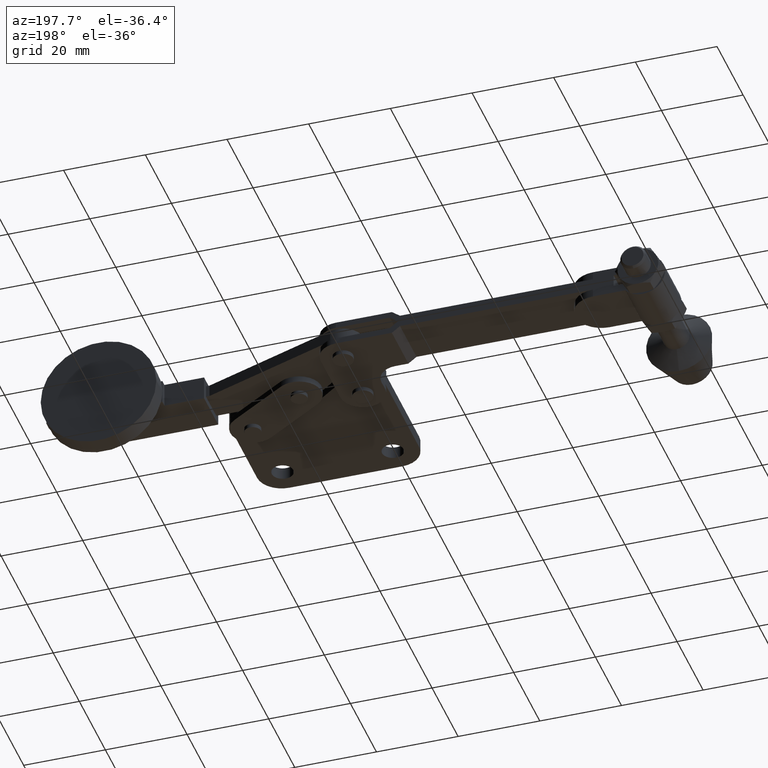
[diagram: clean part render]
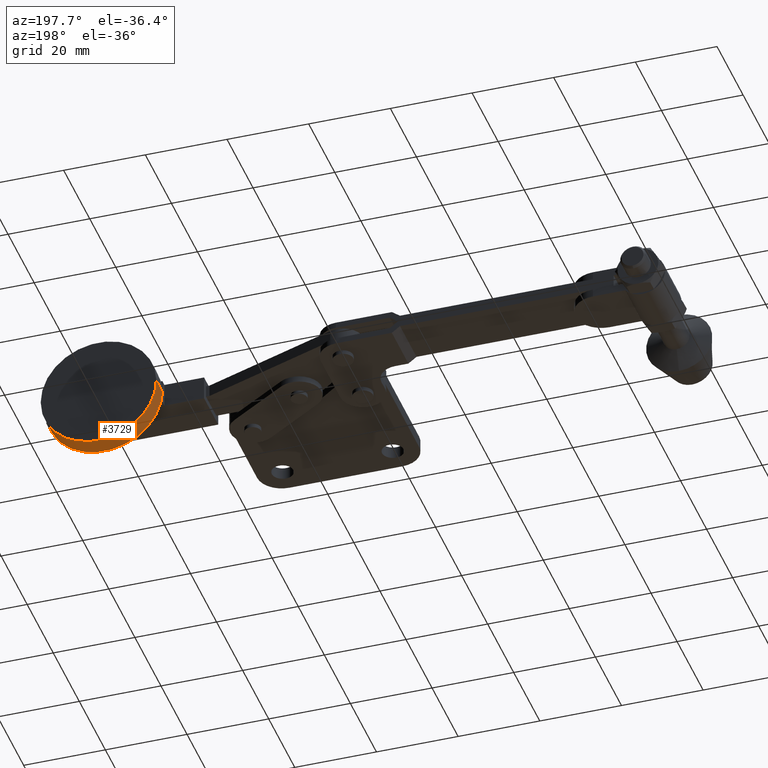
[diagram: same view with one face highlighted and labeled with its STEP entity id]
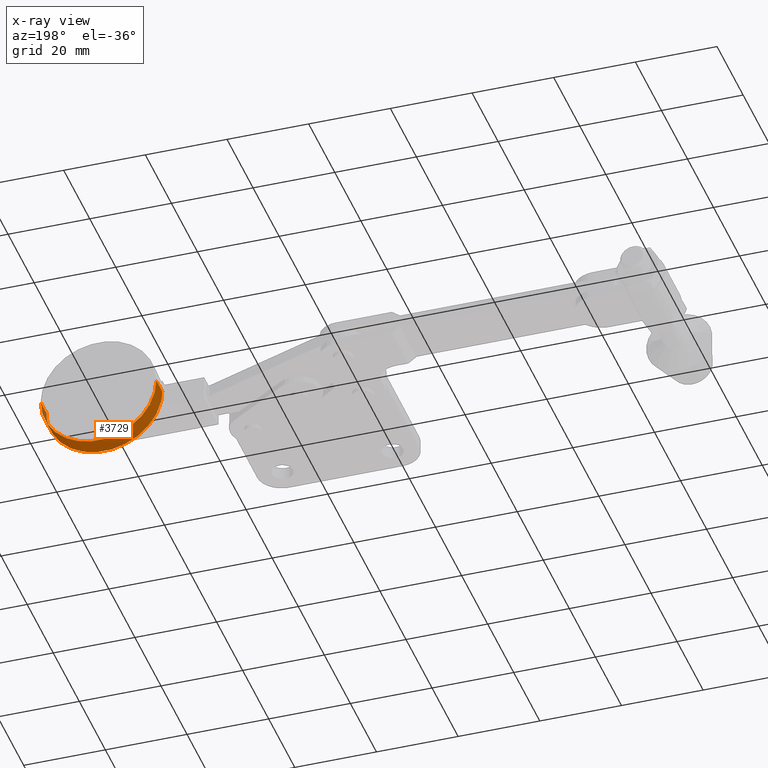
[diagram: x-ray of the same camera — body ghosted, the highlighted face saturated]
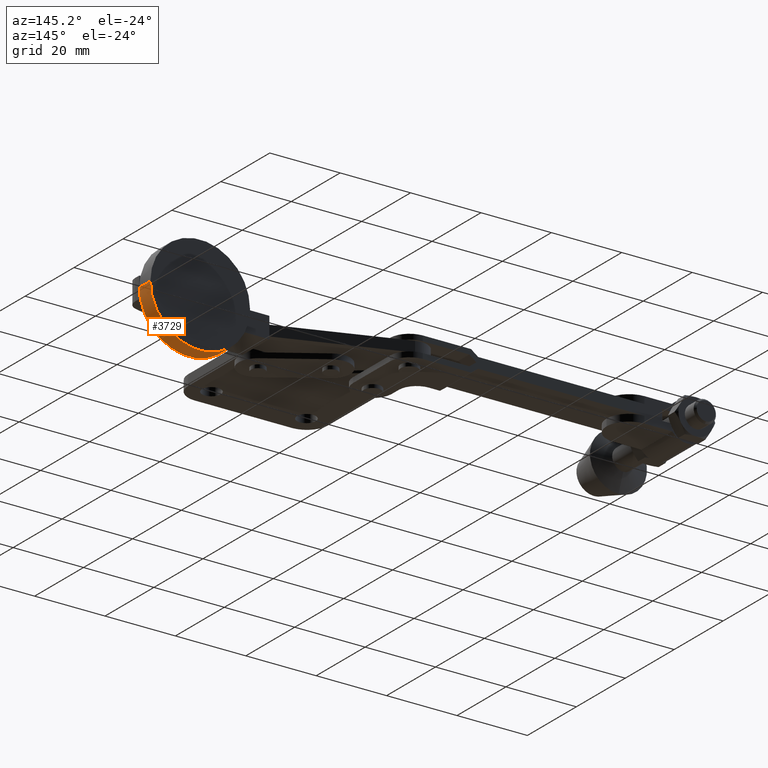
[diagram: same view with one face highlighted and labeled with its STEP entity id]
A machine part, auxiliary view. The second image highlights one B-rep face of the part: STEP entity #3729.
The next image is the same camera in x-ray: the body ghosted, the highlighted face saturated — about 0% of this face is hidden behind the body in this view.
A second angle (auxiliary view) of the same face is appended — the face is thin or edge-on in the first view.
In plain terms, the highlighted cylindrical surface (partial cylindrical patch) has radius 14.16 mm, axis along (-0.0008, 1, 0).
Its self-contained STEP definition (entity closure, byte-faithful):
#57 = VERTEX_POINT ( 'NONE', #3387 ) ;
#533 = CARTESIAN_POINT ( 'NONE',  ( 25.54169471949822800, 28.20000000000000300, 2.776157545336254000E-014 ) ) ;
#693 = CARTESIAN_POINT ( 'NONE',  ( 11.38169471949809100, 32.70000000000001000, 2.776157412436530100E-014 ) ) ;
#920 = CARTESIAN_POINT ( 'NONE',  ( 39.38024955734180600, 28.20000000000000600, -3.000000000000000000 ) ) ;
#1035 = LINE ( 'NONE', #4866, #4521 ) ;
#1195 = DIRECTION ( 'NONE',  ( 1.000000000000000000, 2.450174401097161600E-016, 0.0000000000000000000 ) ) ;
#1223 = ORIENTED_EDGE ( 'NONE', *, *, #5398, .T. ) ;
#1402 = CARTESIAN_POINT ( 'NONE',  ( 39.70169471949836300, 28.20000000000000600, 2.949567465645658800E-014 ) ) ;
#1405 = CARTESIAN_POINT ( 'NONE',  ( 25.54169471949822800, 28.20000000000000300, 2.776157545336254000E-014 ) ) ;
#1657 = FACE_OUTER_BOUND ( 'NONE', #6214, .T. ) ;
#1708 = AXIS2_PLACEMENT_3D ( 'NONE', #2230, #2532, #7450 ) ;
#1800 = AXIS2_PLACEMENT_3D ( 'NONE', #1405, #5998, #2071 ) ;
#1816 = DIRECTION ( 'NONE',  ( -1.665334536937733300E-016, 1.000000000000000000, -2.953327212804751300E-022 ) ) ;
#1880 = EDGE_CURVE ( 'NONE', #5814, #57, #5302, .T. ) ;
#2071 = DIRECTION ( 'NONE',  ( -1.000000000000000000, -2.450174401097161600E-016, 0.0000000000000000000 ) ) ;
#2230 = CARTESIAN_POINT ( 'NONE',  ( 25.54169471949822800, 28.20000000000000300, 2.776157545336254000E-014 ) ) ;
#2258 = DIRECTION ( 'NONE',  ( -1.665334536937733300E-016, 1.000000000000000000, -2.953327212804751300E-022 ) ) ;
#2415 = AXIS2_PLACEMENT_3D ( 'NONE', #533, #5142, #1195 ) ;
#2532 = DIRECTION ( 'NONE',  ( -1.527045313359872400E-016, 1.000000000000000000, -0.0000000000000000000 ) ) ;
#2754 = EDGE_CURVE ( 'NONE', #7260, #7119, #6764, .T. ) ;
#2979 = CARTESIAN_POINT ( 'NONE',  ( 25.54169471949822800, 28.20000000000000300, 2.776157545336254000E-014 ) ) ;
#3366 = DIRECTION ( 'NONE',  ( -1.000000000000000000, 0.0000000000000000000, 0.0000000000000000000 ) ) ;
#3387 = CARTESIAN_POINT ( 'NONE',  ( 11.38169471949809100, 28.19999999999999900, 2.776157478886391900E-014 ) ) ;
#3574 = AXIS2_PLACEMENT_3D ( 'NONE', #2979, #2258, #4978 ) ;
#3729 = ADVANCED_FACE ( 'NONE', ( #1657 ), #6633, .T. ) ;
#3760 = VERTEX_POINT ( 'NONE', #1402 ) ;
#3978 = ORIENTED_EDGE ( 'NONE', *, *, #6801, .T. ) ;
#4108 = AXIS2_PLACEMENT_3D ( 'NONE', #5412, #4155, #3366 ) ;
#4147 = VECTOR ( 'NONE', #1816, 1000.000000000000000 ) ;
#4155 = DIRECTION ( 'NONE',  ( -1.665334536937733300E-016, 1.000000000000000000, -2.953327212804751700E-022 ) ) ;
#4521 = VECTOR ( 'NONE', #6795, 1000.000000000000000 ) ;
#4581 = EDGE_CURVE ( 'NONE', #3760, #4973, #6001, .T. ) ;
#4760 = ORIENTED_EDGE ( 'NONE', *, *, #1880, .T. ) ;
#4761 = CIRCLE ( 'NONE', #1800, 14.16000000000013700 ) ;
#4866 = CARTESIAN_POINT ( 'NONE',  ( 39.70169471949836300, 28.20000000000000600, 2.949567532095520600E-014 ) ) ;
#4973 = VERTEX_POINT ( 'NONE', #920 ) ;
#4978 = DIRECTION ( 'NONE',  ( -1.000000000000000000, -2.450174401097161600E-016, 0.0000000000000000000 ) ) ;
#5142 = DIRECTION ( 'NONE',  ( -1.527045313359872400E-016, 1.000000000000000000, -0.0000000000000000000 ) ) ;
#5302 = CIRCLE ( 'NONE', #1708, 14.16000000000013700 ) ;
#5398 = EDGE_CURVE ( 'NONE', #4973, #5814, #4761, .T. ) ;
#5412 = CARTESIAN_POINT ( 'NONE',  ( 25.54169471949822800, 32.70000000000001000, 2.776157412436530100E-014 ) ) ;
#5719 = LINE ( 'NONE', #5754, #4147 ) ;
#5754 = CARTESIAN_POINT ( 'NONE',  ( 11.38169471949809100, 28.19999999999999900, 2.776157545336254000E-014 ) ) ;
#5770 = ORIENTED_EDGE ( 'NONE', *, *, #4581, .T. ) ;
#5814 = VERTEX_POINT ( 'NONE', #5849 ) ;
#5849 = CARTESIAN_POINT ( 'NONE',  ( 11.70313988165465700, 28.20000000000000300, -3.000000000000000000 ) ) ;
#5998 = DIRECTION ( 'NONE',  ( -1.665334536937733300E-016, 1.000000000000000000, -2.953327212804751700E-022 ) ) ;
#6001 = CIRCLE ( 'NONE', #2415, 14.16000000000013700 ) ;
#6136 = EDGE_CURVE ( 'NONE', #3760, #7260, #1035, .T. ) ;
#6175 = ORIENTED_EDGE ( 'NONE', *, *, #6136, .F. ) ;
#6214 = EDGE_LOOP ( 'NONE', ( #6175, #5770, #1223, #4760, #3978, #7041 ) ) ;
#6633 = CYLINDRICAL_SURFACE ( 'NONE', #3574, 14.16000000000013700 ) ;
#6764 = CIRCLE ( 'NONE', #4108, 14.16000000000013700 ) ;
#6795 = DIRECTION ( 'NONE',  ( -1.665334536937733300E-016, 1.000000000000000000, -2.953327212804751300E-022 ) ) ;
#6801 = EDGE_CURVE ( 'NONE', #57, #7119, #5719, .T. ) ;
#7041 = ORIENTED_EDGE ( 'NONE', *, *, #2754, .F. ) ;
#7119 = VERTEX_POINT ( 'NONE', #693 ) ;
#7260 = VERTEX_POINT ( 'NONE', #7316 ) ;
#7316 = CARTESIAN_POINT ( 'NONE',  ( 39.70169471949836300, 32.70000000000001000, 2.949567465645658800E-014 ) ) ;
#7450 = DIRECTION ( 'NONE',  ( 1.000000000000000000, 2.450174401097161600E-016, 7.105427357601001900E-015 ) ) ;